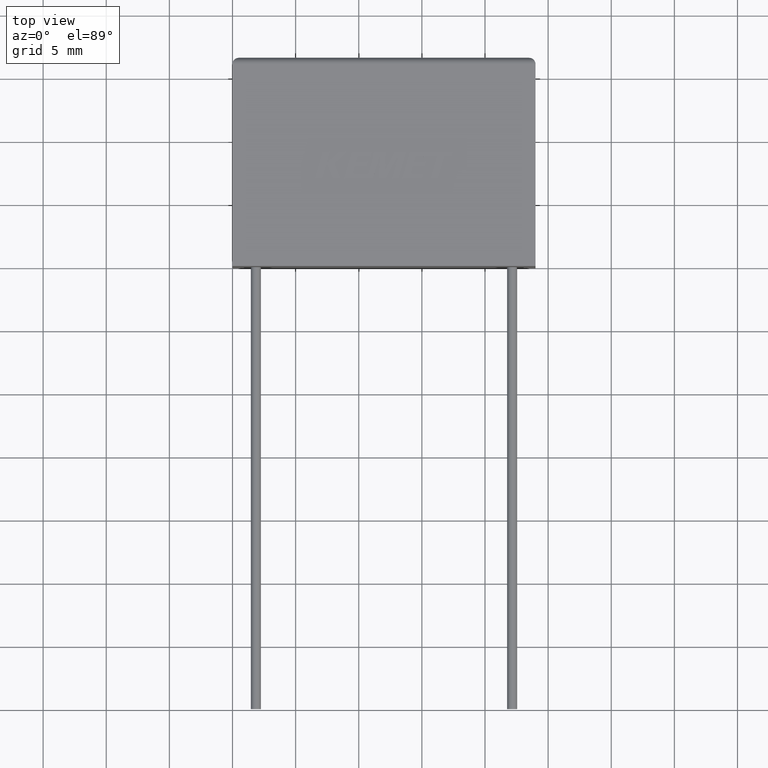
[diagram: clean part render]
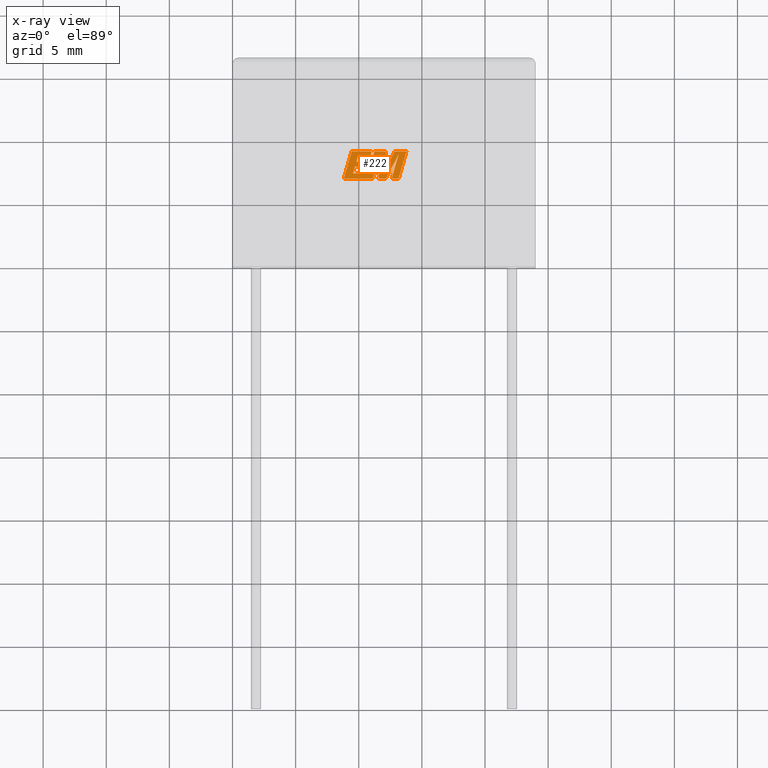
[diagram: x-ray — body ghosted, one internal face saturated and labeled with its STEP entity id]
A machine part, top view, then the same camera in x-ray: the body is ghosted and one INTERNAL B-rep face — a face not visible from any outside direction — is saturated and labeled: STEP entity #222.
In plain terms, the highlighted planar face has unit normal (0, 0, -1).
Its self-contained STEP definition (entity closure, byte-faithful):
#63 = DIRECTION ( 'NONE',  ( 1.000000000000000000, 0.0000000000000000000, 0.0000000000000000000 ) ) ;
#66 = CARTESIAN_POINT ( 'NONE',  ( 12.61151876646890100, 6.918449999999998200, 11.30000000000000100 ) ) ;
#82 = CARTESIAN_POINT ( 'NONE',  ( 10.73740024356318100, 7.327595642751767900, 11.30000000000000100 ) ) ;
#95 = VECTOR ( 'NONE', #63, 1000.000000000000000 ) ;
#140 = EDGE_CURVE ( 'NONE', #1515, #1771, #899, .T. ) ;
#165 = VERTEX_POINT ( 'NONE', #670 ) ;
#179 = CARTESIAN_POINT ( 'NONE',  ( 12.14838708525922700, 6.918449999999999100, 11.30000000000000100 ) ) ;
#189 = LINE ( 'NONE', #2046, #1514 ) ;
#222 = ADVANCED_FACE ( 'NONE', ( #1257 ), #1830, .T. ) ;
#239 = ORIENTED_EDGE ( 'NONE', *, *, #2068, .F. ) ;
#241 = EDGE_CURVE ( 'NONE', #1846, #1515, #1800, .T. ) ;
#246 = VERTEX_POINT ( 'NONE', #472 ) ;
#274 = DIRECTION ( 'NONE',  ( 0.0000000000000000000, 0.0000000000000000000, -1.000000000000000000 ) ) ;
#283 = LINE ( 'NONE', #1654, #1040 ) ;
#320 = ORIENTED_EDGE ( 'NONE', *, *, #241, .F. ) ;
#351 = EDGE_CURVE ( 'NONE', #939, #1623, #189, .T. ) ;
#356 = ORIENTED_EDGE ( 'NONE', *, *, #470, .F. ) ;
#399 = EDGE_CURVE ( 'NONE', #1623, #165, #1337, .T. ) ;
#402 = DIRECTION ( 'NONE',  ( -0.2762517575166415500, -0.9610853065513833600, 0.0000000000000000000 ) ) ;
#408 = CARTESIAN_POINT ( 'NONE',  ( 11.57506660389045000, 6.918449999999999100, 11.30000000000000100 ) ) ;
#432 = VERTEX_POINT ( 'NONE', #1318 ) ;
#436 = CARTESIAN_POINT ( 'NONE',  ( 12.15379620799092400, 9.069011567497705400, 11.30000000000000100 ) ) ;
#449 = CARTESIAN_POINT ( 'NONE',  ( 10.90717901084580400, 8.659663215545428700, 11.30000000000000100 ) ) ;
#458 = VECTOR ( 'NONE', #1811, 1000.000000000000000 ) ;
#470 = EDGE_CURVE ( 'NONE', #1788, #1028, #2055, .T. ) ;
#472 = CARTESIAN_POINT ( 'NONE',  ( 13.15800970377181800, 6.918449999999999100, 11.30000000000000100 ) ) ;
#478 = EDGE_CURVE ( 'NONE', #1329, #1736, #526, .T. ) ;
#497 = CARTESIAN_POINT ( 'NONE',  ( 10.73401303815242800, 8.259659104020451900, 11.30000000000000100 ) ) ;
#509 = CARTESIAN_POINT ( 'NONE',  ( 13.16397327778773800, 8.842258435746613200, 11.30000000000000100 ) ) ;
#526 = LINE ( 'NONE', #946, #1227 ) ;
#529 = EDGE_CURVE ( 'NONE', #1023, #1839, #1765, .T. ) ;
#550 = CARTESIAN_POINT ( 'NONE',  ( 12.14838708525922700, 6.918449999999999100, 11.30000000000000100 ) ) ;
#576 = VECTOR ( 'NONE', #839, 1000.000000000000100 ) ;
#604 = LINE ( 'NONE', #608, #2125 ) ;
#608 = CARTESIAN_POINT ( 'NONE',  ( 9.697541258551613200, 7.862094041955564300, 11.30000000000000100 ) ) ;
#621 = VERTEX_POINT ( 'NONE', #794 ) ;
#646 = CARTESIAN_POINT ( 'NONE',  ( 9.810966866978692000, 8.259659104020451900, 11.30000000000000100 ) ) ;
#670 = CARTESIAN_POINT ( 'NONE',  ( 11.68238478015423700, 8.833038436449806200, 11.30000000000000100 ) ) ;
#689 = CARTESIAN_POINT ( 'NONE',  ( 9.927361184400503200, 8.659663215545428700, 11.30000000000000100 ) ) ;
#699 = VERTEX_POINT ( 'NONE', #436 ) ;
#712 = CARTESIAN_POINT ( 'NONE',  ( 11.23794812053024300, 9.069011567497705400, 11.30000000000000100 ) ) ;
#720 = CARTESIAN_POINT ( 'NONE',  ( 8.815834685362881700, 6.918449999999998200, 11.30000000000000100 ) ) ;
#723 = EDGE_CURVE ( 'NONE', #2238, #1023, #2081, .T. ) ;
#726 = LINE ( 'NONE', #2251, #1752 ) ;
#732 = VECTOR ( 'NONE', #2050, 1000.000000000000100 ) ;
#736 = DIRECTION ( 'NONE',  ( 0.2759782365590722800, 0.9611638845408958500, 0.0000000000000000000 ) ) ;
#738 = VECTOR ( 'NONE', #840, 1000.000000000000000 ) ;
#743 = CARTESIAN_POINT ( 'NONE',  ( 12.83309033457769000, 9.069011567497705400, 11.30000000000000100 ) ) ;
#745 = EDGE_CURVE ( 'NONE', #165, #1899, #1132, .T. ) ;
#757 = CARTESIAN_POINT ( 'NONE',  ( 9.545247794913541000, 7.327595642751767900, 11.30000000000000100 ) ) ;
#765 = LINE ( 'NONE', #1168, #1423 ) ;
#789 = DIRECTION ( 'NONE',  ( 0.2746459304916890600, 0.9615454294334481200, 0.0000000000000000000 ) ) ;
#794 = CARTESIAN_POINT ( 'NONE',  ( 10.62045664959350900, 7.862094041955564300, 11.30000000000000100 ) ) ;
#838 = EDGE_CURVE ( 'NONE', #1028, #2178, #1934, .T. ) ;
#839 = DIRECTION ( 'NONE',  ( -0.05596501978069497200, -0.9984327301130238000, 0.0000000000000000000 ) ) ;
#840 = DIRECTION ( 'NONE',  ( 1.000000000000000000, 0.0000000000000000000, 0.0000000000000000000 ) ) ;
#887 = CARTESIAN_POINT ( 'NONE',  ( 12.61151876646890100, 6.918449999999998200, 11.30000000000000100 ) ) ;
#899 = LINE ( 'NONE', #449, #1287 ) ;
#928 = EDGE_CURVE ( 'NONE', #1736, #1138, #2104, .T. ) ;
#939 = VERTEX_POINT ( 'NONE', #720 ) ;
#946 = CARTESIAN_POINT ( 'NONE',  ( 13.77631201151804200, 9.069011567497705400, 11.30000000000000100 ) ) ;
#975 = LINE ( 'NONE', #408, #95 ) ;
#1002 = VECTOR ( 'NONE', #2146, 1000.000000000000000 ) ;
#1023 = VERTEX_POINT ( 'NONE', #2121 ) ;
#1028 = VERTEX_POINT ( 'NONE', #1747 ) ;
#1040 = VECTOR ( 'NONE', #2412, 1000.000000000000100 ) ;
#1049 = VECTOR ( 'NONE', #1507, 1000.000000000000000 ) ;
#1062 = DIRECTION ( 'NONE',  ( -1.000000000000000000, 0.0000000000000000000, 0.0000000000000000000 ) ) ;
#1077 = CARTESIAN_POINT ( 'NONE',  ( 10.90717901084580400, 8.659663215545428700, 11.30000000000000100 ) ) ;
#1122 = ORIENTED_EDGE ( 'NONE', *, *, #928, .F. ) ;
#1132 = LINE ( 'NONE', #1959, #576 ) ;
#1138 = VERTEX_POINT ( 'NONE', #1665 ) ;
#1141 = CARTESIAN_POINT ( 'NONE',  ( 11.02344254813588800, 9.069011567497705400, 11.30000000000000100 ) ) ;
#1160 = DIRECTION ( 'NONE',  ( -1.000000000000000000, 0.0000000000000000000, 0.0000000000000000000 ) ) ;
#1168 = CARTESIAN_POINT ( 'NONE',  ( 11.23794812053024300, 9.069011567497705400, 11.30000000000000100 ) ) ;
#1182 = CARTESIAN_POINT ( 'NONE',  ( 9.434679732383630200, 9.069011567497705400, 11.30000000000000100 ) ) ;
#1188 = ORIENTED_EDGE ( 'NONE', *, *, #745, .F. ) ;
#1194 = DIRECTION ( 'NONE',  ( 1.000000000000000000, 0.0000000000000000000, 0.0000000000000000000 ) ) ;
#1220 = VERTEX_POINT ( 'NONE', #2269 ) ;
#1222 = DIRECTION ( 'NONE',  ( 0.2732148821746286900, 0.9619530280415482500, 0.0000000000000000000 ) ) ;
#1225 = DIRECTION ( 'NONE',  ( -0.2765379750249970500, -0.9610029908221274800, 0.0000000000000000000 ) ) ;
#1227 = VECTOR ( 'NONE', #2267, 1000.000000000000000 ) ;
#1255 = VECTOR ( 'NONE', #1520, 1000.000000000000100 ) ;
#1257 = FACE_OUTER_BOUND ( 'NONE', #2417, .T. ) ;
#1269 = ORIENTED_EDGE ( 'NONE', *, *, #2275, .F. ) ;
#1287 = VECTOR ( 'NONE', #1222, 1000.000000000000100 ) ;
#1290 = EDGE_CURVE ( 'NONE', #2272, #1846, #1430, .T. ) ;
#1316 = CARTESIAN_POINT ( 'NONE',  ( 13.77631201151804200, 9.069011567497705400, 11.30000000000000100 ) ) ;
#1318 = CARTESIAN_POINT ( 'NONE',  ( 9.434679732383630200, 9.069011567497705400, 11.30000000000000100 ) ) ;
#1329 = VERTEX_POINT ( 'NONE', #1316 ) ;
#1337 = LINE ( 'NONE', #2280, #2225 ) ;
#1345 = ORIENTED_EDGE ( 'NONE', *, *, #1913, .F. ) ;
#1393 = LINE ( 'NONE', #1525, #2306 ) ;
#1397 = ORIENTED_EDGE ( 'NONE', *, *, #2479, .F. ) ;
#1423 = VECTOR ( 'NONE', #402, 1000.000000000000100 ) ;
#1430 = LINE ( 'NONE', #646, #1509 ) ;
#1438 = EDGE_CURVE ( 'NONE', #699, #1566, #2245, .T. ) ;
#1452 = LINE ( 'NONE', #887, #1817 ) ;
#1462 = DIRECTION ( 'NONE',  ( 1.000000000000000000, 1.410797975395186900E-015, 0.0000000000000000000 ) ) ;
#1474 = ORIENTED_EDGE ( 'NONE', *, *, #529, .F. ) ;
#1500 = ORIENTED_EDGE ( 'NONE', *, *, #838, .F. ) ;
#1502 = VECTOR ( 'NONE', #1160, 1000.000000000000000 ) ;
#1507 = DIRECTION ( 'NONE',  ( 0.4668459304955088200, 0.8843386665637675800, 0.0000000000000000000 ) ) ;
#1509 = VECTOR ( 'NONE', #1613, 1000.000000000000000 ) ;
#1510 = EDGE_CURVE ( 'NONE', #246, #1329, #283, .T. ) ;
#1514 = VECTOR ( 'NONE', #2053, 1000.000000000000000 ) ;
#1515 = VERTEX_POINT ( 'NONE', #1077 ) ;
#1520 = DIRECTION ( 'NONE',  ( 0.2740217765954059400, 0.9617234872620598100, 0.0000000000000000000 ) ) ;
#1525 = CARTESIAN_POINT ( 'NONE',  ( 10.62045664959350900, 7.862094041955564300, 11.30000000000000100 ) ) ;
#1566 = VERTEX_POINT ( 'NONE', #712 ) ;
#1613 = DIRECTION ( 'NONE',  ( 0.2793947940878305800, 0.9601763114327591700, 0.0000000000000000000 ) ) ;
#1623 = VERTEX_POINT ( 'NONE', #2384 ) ;
#1636 = EDGE_CURVE ( 'NONE', #432, #939, #1895, .T. ) ;
#1641 = EDGE_CURVE ( 'NONE', #1899, #1788, #975, .T. ) ;
#1646 = ORIENTED_EDGE ( 'NONE', *, *, #140, .F. ) ;
#1650 = CARTESIAN_POINT ( 'NONE',  ( 9.697541258551613200, 7.862094041955564300, 11.30000000000000100 ) ) ;
#1654 = CARTESIAN_POINT ( 'NONE',  ( 13.15800970377181800, 6.918449999999999100, 11.30000000000000100 ) ) ;
#1665 = CARTESIAN_POINT ( 'NONE',  ( 12.07109175963770500, 7.532622752351330500, 11.30000000000000100 ) ) ;
#1701 = ORIENTED_EDGE ( 'NONE', *, *, #1510, .F. ) ;
#1708 = ORIENTED_EDGE ( 'NONE', *, *, #1290, .F. ) ;
#1713 = LINE ( 'NONE', #497, #458 ) ;
#1732 = CARTESIAN_POINT ( 'NONE',  ( 12.15379620799092400, 9.069011567497705400, 11.30000000000000100 ) ) ;
#1736 = VERTEX_POINT ( 'NONE', #743 ) ;
#1747 = CARTESIAN_POINT ( 'NONE',  ( 13.16397327778773800, 8.842258435746613200, 11.30000000000000100 ) ) ;
#1752 = VECTOR ( 'NONE', #1903, 1000.000000000000000 ) ;
#1765 = LINE ( 'NONE', #757, #1255 ) ;
#1768 = DIRECTION ( 'NONE',  ( -1.000000000000000000, 0.0000000000000000000, 0.0000000000000000000 ) ) ;
#1771 = VERTEX_POINT ( 'NONE', #1141 ) ;
#1788 = VERTEX_POINT ( 'NONE', #179 ) ;
#1789 = CARTESIAN_POINT ( 'NONE',  ( 10.73740024356318100, 7.327595642751767900, 11.30000000000000100 ) ) ;
#1800 = LINE ( 'NONE', #1838, #738 ) ;
#1810 = ORIENTED_EDGE ( 'NONE', *, *, #2136, .F. ) ;
#1811 = DIRECTION ( 'NONE',  ( -1.000000000000000000, 0.0000000000000000000, 0.0000000000000000000 ) ) ;
#1817 = VECTOR ( 'NONE', #1462, 1000.000000000000000 ) ;
#1830 = PLANE ( 'NONE',  #2395 ) ;
#1838 = CARTESIAN_POINT ( 'NONE',  ( 9.927361184400503200, 8.659663215545428700, 11.30000000000000100 ) ) ;
#1839 = VERTEX_POINT ( 'NONE', #1650 ) ;
#1843 = ORIENTED_EDGE ( 'NONE', *, *, #723, .F. ) ;
#1846 = VERTEX_POINT ( 'NONE', #689 ) ;
#1852 = VECTOR ( 'NONE', #2284, 1000.000000000000100 ) ;
#1895 = LINE ( 'NONE', #1182, #1993 ) ;
#1899 = VERTEX_POINT ( 'NONE', #2040 ) ;
#1903 = DIRECTION ( 'NONE',  ( -1.000000000000000000, 0.0000000000000000000, 0.0000000000000000000 ) ) ;
#1913 = EDGE_CURVE ( 'NONE', #1566, #2238, #765, .T. ) ;
#1918 = ORIENTED_EDGE ( 'NONE', *, *, #1438, .F. ) ;
#1934 = LINE ( 'NONE', #509, #732 ) ;
#1941 = VECTOR ( 'NONE', #1768, 1000.000000000000000 ) ;
#1959 = CARTESIAN_POINT ( 'NONE',  ( 11.68238478015423700, 8.833038436449806200, 11.30000000000000100 ) ) ;
#1976 = CARTESIAN_POINT ( 'NONE',  ( 12.07109175963770500, 7.532622752351330500, 11.30000000000000100 ) ) ;
#1977 = ORIENTED_EDGE ( 'NONE', *, *, #1636, .F. ) ;
#1993 = VECTOR ( 'NONE', #1225, 1000.000000000000100 ) ;
#1994 = LINE ( 'NONE', #1976, #1002 ) ;
#1999 = CARTESIAN_POINT ( 'NONE',  ( 9.810966866978692000, 8.259659104020451900, 11.30000000000000100 ) ) ;
#2001 = EDGE_CURVE ( 'NONE', #1138, #699, #1994, .T. ) ;
#2038 = ORIENTED_EDGE ( 'NONE', *, *, #478, .F. ) ;
#2040 = CARTESIAN_POINT ( 'NONE',  ( 11.57506660389045000, 6.918449999999999100, 11.30000000000000100 ) ) ;
#2046 = CARTESIAN_POINT ( 'NONE',  ( 10.74985704941476600, 6.918449999999999100, 11.30000000000000100 ) ) ;
#2050 = DIRECTION ( 'NONE',  ( -0.2760118818968581000, -0.9611542233438683500, 0.0000000000000000000 ) ) ;
#2053 = DIRECTION ( 'NONE',  ( 1.000000000000000000, -2.014110522645507600E-015, 0.0000000000000000000 ) ) ;
#2055 = LINE ( 'NONE', #550, #1049 ) ;
#2068 = EDGE_CURVE ( 'NONE', #2178, #246, #1452, .T. ) ;
#2076 = EDGE_CURVE ( 'NONE', #1771, #432, #726, .T. ) ;
#2081 = LINE ( 'NONE', #1789, #1941 ) ;
#2104 = LINE ( 'NONE', #2415, #1852 ) ;
#2117 = ORIENTED_EDGE ( 'NONE', *, *, #2076, .F. ) ;
#2121 = CARTESIAN_POINT ( 'NONE',  ( 9.545247794913541000, 7.327595642751767900, 11.30000000000000100 ) ) ;
#2125 = VECTOR ( 'NONE', #1194, 1000.000000000000000 ) ;
#2136 = EDGE_CURVE ( 'NONE', #1839, #621, #604, .T. ) ;
#2146 = DIRECTION ( 'NONE',  ( 0.05375259206908614100, 0.9985542843760946100, 0.0000000000000000000 ) ) ;
#2178 = VERTEX_POINT ( 'NONE', #66 ) ;
#2225 = VECTOR ( 'NONE', #736, 1000.000000000000200 ) ;
#2238 = VERTEX_POINT ( 'NONE', #82 ) ;
#2245 = LINE ( 'NONE', #1732, #1502 ) ;
#2251 = CARTESIAN_POINT ( 'NONE',  ( 11.02344254813588800, 9.069011567497705400, 11.30000000000000100 ) ) ;
#2265 = ORIENTED_EDGE ( 'NONE', *, *, #399, .F. ) ;
#2267 = DIRECTION ( 'NONE',  ( -1.000000000000000000, 0.0000000000000000000, 0.0000000000000000000 ) ) ;
#2269 = CARTESIAN_POINT ( 'NONE',  ( 10.73401303815242800, 8.259659104020451900, 11.30000000000000100 ) ) ;
#2272 = VERTEX_POINT ( 'NONE', #1999 ) ;
#2275 = EDGE_CURVE ( 'NONE', #1220, #2272, #1713, .T. ) ;
#2280 = CARTESIAN_POINT ( 'NONE',  ( 11.13265049557882900, 6.918449999999998200, 11.30000000000000100 ) ) ;
#2284 = DIRECTION ( 'NONE',  ( -0.4443210308329522100, -0.8958676361826799500, 0.0000000000000000000 ) ) ;
#2306 = VECTOR ( 'NONE', #789, 1000.000000000000200 ) ;
#2330 = ORIENTED_EDGE ( 'NONE', *, *, #1641, .F. ) ;
#2339 = ORIENTED_EDGE ( 'NONE', *, *, #351, .F. ) ;
#2348 = ORIENTED_EDGE ( 'NONE', *, *, #2001, .F. ) ;
#2370 = CARTESIAN_POINT ( 'NONE',  ( 0.03254324761736357400, 1.482576690872297000, 11.30000000000000100 ) ) ;
#2384 = CARTESIAN_POINT ( 'NONE',  ( 11.13265049557882900, 6.918449999999998200, 11.30000000000000100 ) ) ;
#2395 = AXIS2_PLACEMENT_3D ( 'NONE', #2370, #274, #1062 ) ;
#2412 = DIRECTION ( 'NONE',  ( 0.2763139702539114100, 0.9610674221107072800, 0.0000000000000000000 ) ) ;
#2415 = CARTESIAN_POINT ( 'NONE',  ( 12.83309033457769000, 9.069011567497705400, 11.30000000000000100 ) ) ;
#2417 = EDGE_LOOP ( 'NONE', ( #2038, #1701, #239, #1500, #356, #2330, #1188, #2265, #2339, #1977, #2117, #1646, #320, #1708, #1269, #1397, #1810, #1474, #1843, #1345, #1918, #2348, #1122 ) ) ;
#2479 = EDGE_CURVE ( 'NONE', #621, #1220, #1393, .T. ) ;